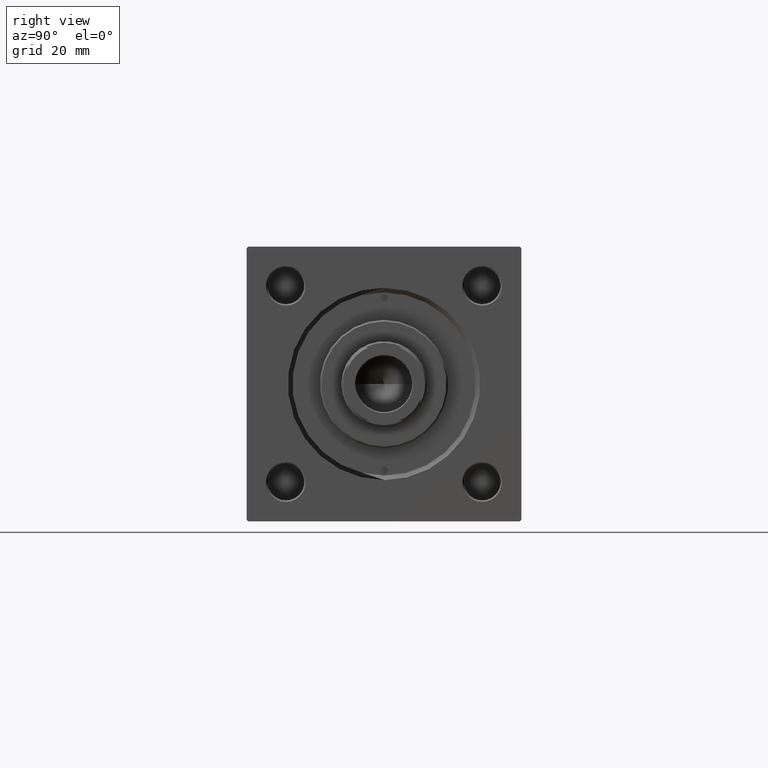
[diagram: clean part render]
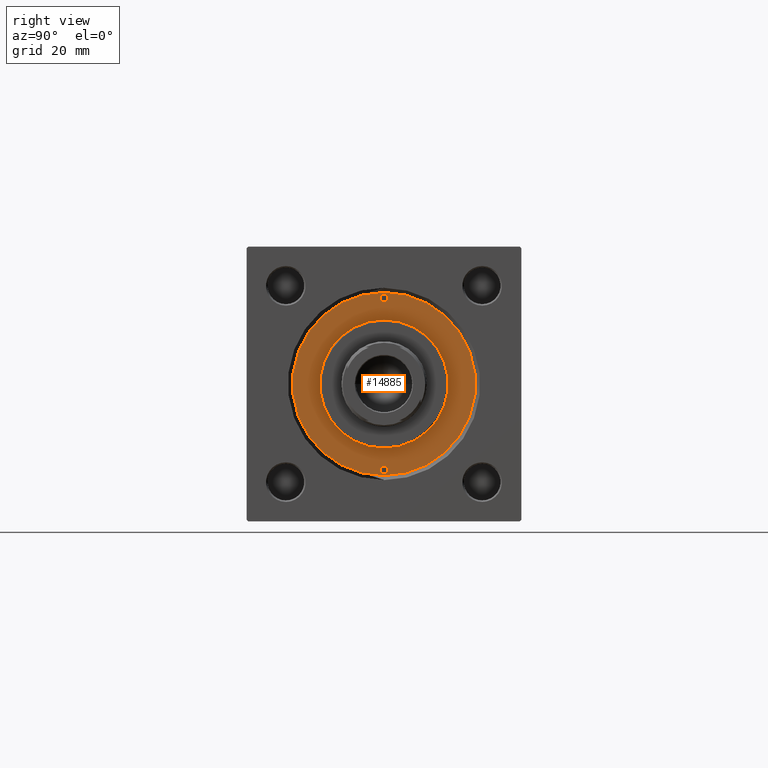
[diagram: same view with one face highlighted and labeled with its STEP entity id]
A machine part, right view. The second image highlights one B-rep face of the part: STEP entity #14885.
In plain terms, the highlighted planar face has unit normal (1, 0, 0).
Its self-contained STEP definition (entity closure, byte-faithful):
#804 = EDGE_LOOP ( 'NONE', ( #8302, #17465 ) ) ;
#1039 = PLANE ( 'NONE',  #9524 ) ;
#1988 = VERTEX_POINT ( 'NONE', #47054 ) ;
#2651 = CIRCLE ( 'NONE', #39218, 21.00000000000000000 ) ;
#2694 = CIRCLE ( 'NONE', #35188, 1.249999999999997558 ) ;
#2721 = CARTESIAN_POINT ( 'NONE',  ( 29.50000000000000000, 0.000000000000000000, 28.69999999999999929 ) ) ;
#3326 = EDGE_LOOP ( 'NONE', ( #20643, #47059 ) ) ;
#4790 = CARTESIAN_POINT ( 'NONE',  ( -21.00000000000000000, 0.000000000000000000, 28.69999999999999929 ) ) ;
#4862 = DIRECTION ( 'NONE',  ( 0.000000000000000000, 0.000000000000000000, 1.000000000000000000 ) ) ;
#6559 = VERTEX_POINT ( 'NONE', #41452 ) ;
#7020 = DIRECTION ( 'NONE',  ( 0.000000000000000000, 0.000000000000000000, 1.000000000000000000 ) ) ;
#7150 = CARTESIAN_POINT ( 'NONE',  ( 0.000000000000000000, 0.000000000000000000, 28.69999999999999929 ) ) ;
#7465 = DIRECTION ( 'NONE',  ( 1.000000000000000000, 0.000000000000000000, 0.000000000000000000 ) ) ;
#7614 = EDGE_LOOP ( 'NONE', ( #13897, #10090 ) ) ;
#8302 = ORIENTED_EDGE ( 'NONE', *, *, #44374, .T. ) ;
#9524 = AXIS2_PLACEMENT_3D ( 'NONE', #47175, #23983, #12758 ) ;
#9601 = CARTESIAN_POINT ( 'NONE',  ( 0.000000000000000000, 0.000000000000000000, 28.69999999999999929 ) ) ;
#9736 = CIRCLE ( 'NONE', #38225, 1.249999999999997558 ) ;
#10090 = ORIENTED_EDGE ( 'NONE', *, *, #17314, .F. ) ;
#11250 = CARTESIAN_POINT ( 'NONE',  ( 0.000000000000000000, 0.000000000000000000, 28.69999999999999929 ) ) ;
#11282 = CARTESIAN_POINT ( 'NONE',  ( 28.25000000000000000, 0.000000000000000000, 28.69999999999999929 ) ) ;
#11875 = VERTEX_POINT ( 'NONE', #2721 ) ;
#12509 = DIRECTION ( 'NONE',  ( 1.000000000000000000, 0.000000000000000000, 0.000000000000000000 ) ) ;
#12758 = DIRECTION ( 'NONE',  ( 1.000000000000000000, 0.000000000000000000, -0.000000000000000000 ) ) ;
#13897 = ORIENTED_EDGE ( 'NONE', *, *, #35635, .F. ) ;
#14885 = ADVANCED_FACE ( 'NONE', ( #35444, #24483, #43341, #47924 ), #1039, .T. ) ;
#16725 = CARTESIAN_POINT ( 'NONE',  ( 28.25000000000000000, 0.000000000000000000, 28.69999999999999929 ) ) ;
#17314 = EDGE_CURVE ( 'NONE', #23980, #34838, #19361, .T. ) ;
#17465 = ORIENTED_EDGE ( 'NONE', *, *, #20744, .T. ) ;
#17739 = CARTESIAN_POINT ( 'NONE',  ( 0.000000000000000000, 0.000000000000000000, 28.69999999999999929 ) ) ;
#18596 = AXIS2_PLACEMENT_3D ( 'NONE', #46927, #4862, #12509 ) ;
#19361 = CIRCLE ( 'NONE', #18596, 1.249999999999997558 ) ;
#20617 = AXIS2_PLACEMENT_3D ( 'NONE', #7150, #43559, #46897 ) ;
#20643 = ORIENTED_EDGE ( 'NONE', *, *, #46444, .F. ) ;
#20744 = EDGE_CURVE ( 'NONE', #50359, #28112, #29244, .T. ) ;
#22121 = CARTESIAN_POINT ( 'NONE',  ( -28.25000000000000000, 0.000000000000000000, 28.69999999999999929 ) ) ;
#23980 = VERTEX_POINT ( 'NONE', #31110 ) ;
#23983 = DIRECTION ( 'NONE',  ( 0.000000000000000000, 0.000000000000000000, 1.000000000000000000 ) ) ;
#24483 = FACE_BOUND ( 'NONE', #35939, .T. ) ;
#25146 = DIRECTION ( 'NONE',  ( 0.000000000000000000, 0.000000000000000000, 1.000000000000000000 ) ) ;
#25434 = DIRECTION ( 'NONE',  ( 1.000000000000000000, 0.000000000000000000, 0.000000000000000000 ) ) ;
#25523 = AXIS2_PLACEMENT_3D ( 'NONE', #9601, #25146, #36863 ) ;
#28112 = VERTEX_POINT ( 'NONE', #42420 ) ;
#28690 = DIRECTION ( 'NONE',  ( 0.000000000000000000, 0.000000000000000000, 1.000000000000000000 ) ) ;
#29244 = CIRCLE ( 'NONE', #47145, 30.00000000000000000 ) ;
#31110 = CARTESIAN_POINT ( 'NONE',  ( -29.50000000000000000, 1.530808498934192803E-16, 28.69999999999999929 ) ) ;
#32531 = AXIS2_PLACEMENT_3D ( 'NONE', #11282, #42371, #7465 ) ;
#33415 = VERTEX_POINT ( 'NONE', #4790 ) ;
#34838 = VERTEX_POINT ( 'NONE', #35756 ) ;
#35188 = AXIS2_PLACEMENT_3D ( 'NONE', #16725, #28690, #36572 ) ;
#35444 = FACE_BOUND ( 'NONE', #7614, .T. ) ;
#35635 = EDGE_CURVE ( 'NONE', #34838, #23980, #9736, .T. ) ;
#35756 = CARTESIAN_POINT ( 'NONE',  ( -27.00000000000000355, 0.000000000000000000, 28.69999999999999929 ) ) ;
#35939 = EDGE_LOOP ( 'NONE', ( #36332, #48881 ) ) ;
#36265 = EDGE_CURVE ( 'NONE', #1988, #11875, #47212, .T. ) ;
#36332 = ORIENTED_EDGE ( 'NONE', *, *, #43630, .F. ) ;
#36572 = DIRECTION ( 'NONE',  ( 1.000000000000000000, 0.000000000000000000, 0.000000000000000000 ) ) ;
#36863 = DIRECTION ( 'NONE',  ( 1.000000000000000000, 0.000000000000000000, 0.000000000000000000 ) ) ;
#38225 = AXIS2_PLACEMENT_3D ( 'NONE', #22121, #44801, #25434 ) ;
#38512 = DIRECTION ( 'NONE',  ( 1.000000000000000000, 0.000000000000000000, 0.000000000000000000 ) ) ;
#39218 = AXIS2_PLACEMENT_3D ( 'NONE', #11250, #46169, #38512 ) ;
#39288 = CIRCLE ( 'NONE', #20617, 30.00000000000000000 ) ;
#39959 = CARTESIAN_POINT ( 'NONE',  ( 30.00000000000000000, 3.673940397442059178E-15, 28.69999999999999929 ) ) ;
#41452 = CARTESIAN_POINT ( 'NONE',  ( 21.00000000000000000, 2.571758278209441661E-15, 28.69999999999999929 ) ) ;
#42121 = EDGE_CURVE ( 'NONE', #6559, #33415, #2651, .T. ) ;
#42371 = DIRECTION ( 'NONE',  ( 0.000000000000000000, 0.000000000000000000, 1.000000000000000000 ) ) ;
#42420 = CARTESIAN_POINT ( 'NONE',  ( -30.00000000000000000, 0.000000000000000000, 28.69999999999999929 ) ) ;
#43341 = FACE_BOUND ( 'NONE', #3326, .T. ) ;
#43559 = DIRECTION ( 'NONE',  ( 0.000000000000000000, 0.000000000000000000, 1.000000000000000000 ) ) ;
#43630 = EDGE_CURVE ( 'NONE', #11875, #1988, #2694, .T. ) ;
#44374 = EDGE_CURVE ( 'NONE', #28112, #50359, #39288, .T. ) ;
#44801 = DIRECTION ( 'NONE',  ( 0.000000000000000000, 0.000000000000000000, 1.000000000000000000 ) ) ;
#46169 = DIRECTION ( 'NONE',  ( 0.000000000000000000, 0.000000000000000000, 1.000000000000000000 ) ) ;
#46444 = EDGE_CURVE ( 'NONE', #33415, #6559, #47503, .T. ) ;
#46897 = DIRECTION ( 'NONE',  ( 1.000000000000000000, 0.000000000000000000, 0.000000000000000000 ) ) ;
#46927 = CARTESIAN_POINT ( 'NONE',  ( -28.25000000000000000, 0.000000000000000000, 28.69999999999999929 ) ) ;
#47054 = CARTESIAN_POINT ( 'NONE',  ( 27.00000000000000355, 1.530808498934192803E-16, 28.69999999999999929 ) ) ;
#47059 = ORIENTED_EDGE ( 'NONE', *, *, #42121, .F. ) ;
#47145 = AXIS2_PLACEMENT_3D ( 'NONE', #17739, #7020, #49581 ) ;
#47175 = CARTESIAN_POINT ( 'NONE',  ( 0.000000000000000000, 0.000000000000000000, 28.69999999999999929 ) ) ;
#47212 = CIRCLE ( 'NONE', #32531, 1.249999999999997558 ) ;
#47503 = CIRCLE ( 'NONE', #25523, 21.00000000000000000 ) ;
#47924 = FACE_OUTER_BOUND ( 'NONE', #804, .T. ) ;
#48881 = ORIENTED_EDGE ( 'NONE', *, *, #36265, .F. ) ;
#49581 = DIRECTION ( 'NONE',  ( 1.000000000000000000, 0.000000000000000000, 0.000000000000000000 ) ) ;
#50359 = VERTEX_POINT ( 'NONE', #39959 ) ;